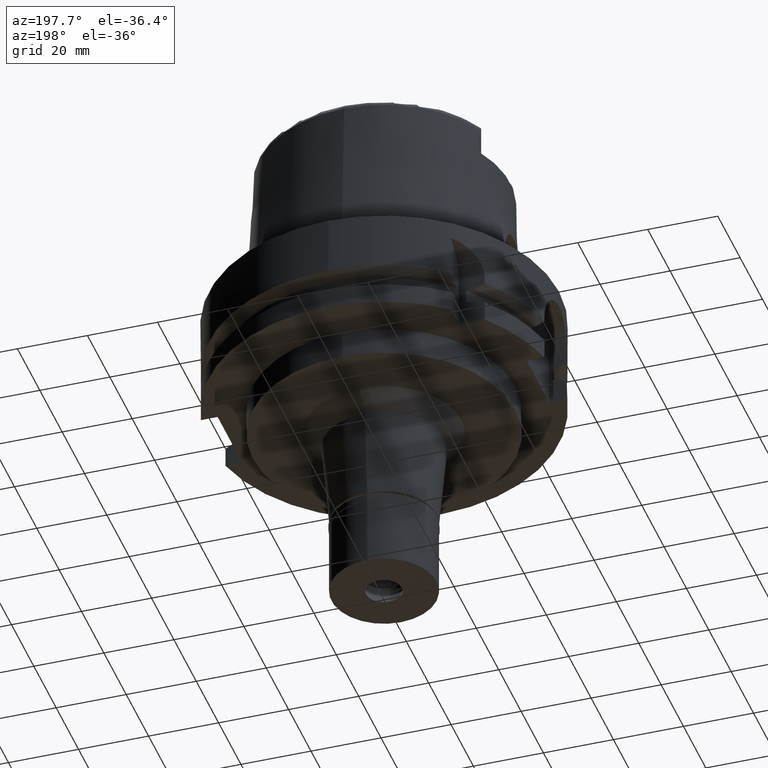
[diagram: clean part render]
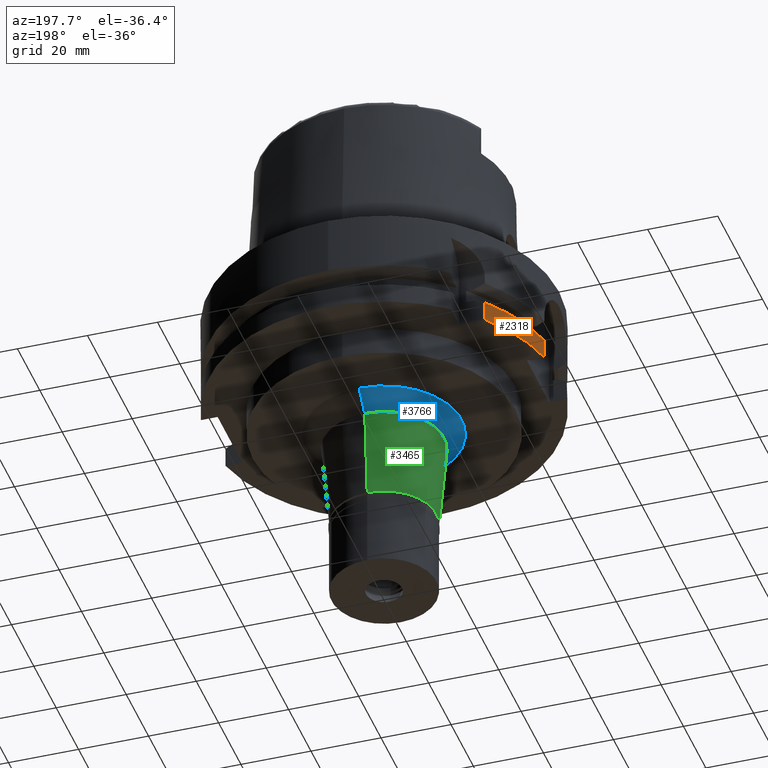
[diagram: same view with three faces highlighted in distinct colors, each labeled with its STEP entity id]
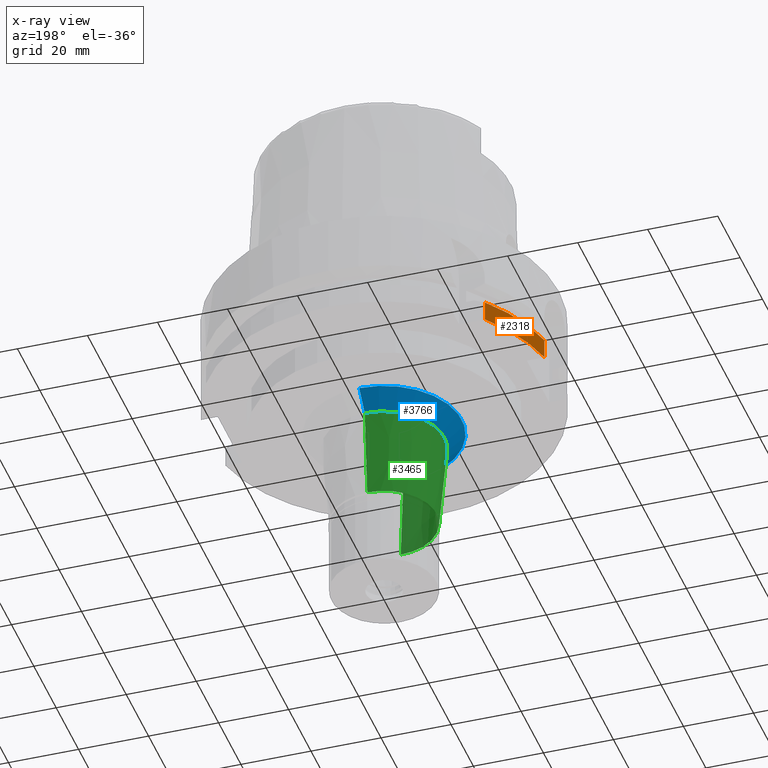
[diagram: x-ray of the same camera — body ghosted, the three highlighted faces saturated]
A machine part, auxiliary view with three faces highlighted in distinct colors.
The next image is the same camera in x-ray (body ghosted, the three faces saturated) — at least one of them is partly hidden behind the body in this view.
Their STEP definitions:

[orange] entity #2318 — the highlighted cylindrical surface (partial cylindrical patch) has radius 50 mm, axis along (0, 0, 1).
#2 = LINE ( 'NONE', #413, #2345 ) ;
#97 = EDGE_CURVE ( 'NONE', #5439, #4053, #2758, .T. ) ;
#413 = CARTESIAN_POINT ( 'NONE',  ( -48.98979485565999425, 10.00000000000000000, -23.24759526419000011 ) ) ;
#467 = CARTESIAN_POINT ( 'NONE',  ( -38.82975730076999810, 31.49999917402000094, -23.24759226099000031 ) ) ;
#515 = DIRECTION ( 'NONE',  ( 0.0000000000000000000, 0.0000000000000000000, 1.000000000000000000 ) ) ;
#912 = ORIENTED_EDGE ( 'NONE', *, *, #4080, .T. ) ;
#960 = LINE ( 'NONE', #4343, #1227 ) ;
#1182 = DIRECTION ( 'NONE',  ( 0.0000000000000000000, 1.000000000000000000, 0.0000000000000000000 ) ) ;
#1227 = VECTOR ( 'NONE', #3031, 1000.000000000000227 ) ;
#1239 = EDGE_LOOP ( 'NONE', ( #912, #2270, #1857, #5146 ) ) ;
#1663 = DIRECTION ( 'NONE',  ( -8.399427413532000465E-14, 0.0000000000000000000, -1.000000000000000000 ) ) ;
#1771 = AXIS2_PLACEMENT_3D ( 'NONE', #4065, #5119, #5392 ) ;
#1857 = ORIENTED_EDGE ( 'NONE', *, *, #97, .T. ) ;
#2270 = ORIENTED_EDGE ( 'NONE', *, *, #3182, .F. ) ;
#2311 = CIRCLE ( 'NONE', #2674, 50.00000000000000711 ) ;
#2318 = ADVANCED_FACE ( 'NONE', ( #5075 ), #3699, .T. ) ;
#2345 = VECTOR ( 'NONE', #1663, 1000.000000000000000 ) ;
#2615 = AXIS2_PLACEMENT_3D ( 'NONE', #5103, #3788, #1182 ) ;
#2659 = CARTESIAN_POINT ( 'NONE',  ( 0.0000000000000000000, 0.0000000000000000000, -29.00000000000000000 ) ) ;
#2674 = AXIS2_PLACEMENT_3D ( 'NONE', #2659, #515, #3908 ) ;
#2758 = CIRCLE ( 'NONE', #1771, 49.99999999999997868 ) ;
#3022 = VERTEX_POINT ( 'NONE', #5478 ) ;
#3031 = DIRECTION ( 'NONE',  ( -1.164835666499979694E-07, -1.435883620958975412E-07, 0.9999999999999827915 ) ) ;
#3182 = EDGE_CURVE ( 'NONE', #5439, #3022, #2, .T. ) ;
#3699 = CYLINDRICAL_SURFACE ( 'NONE', #2615, 50.00000000000000000 ) ;
#3788 = DIRECTION ( 'NONE',  ( 0.0000000000000000000, 0.0000000000000000000, 1.000000000000000000 ) ) ;
#3908 = DIRECTION ( 'NONE',  ( -0.7765951326141738997, 0.6299999999999789102, 0.0000000000000000000 ) ) ;
#3955 = VERTEX_POINT ( 'NONE', #4307 ) ;
#4008 = EDGE_CURVE ( 'NONE', #3955, #4053, #960, .T. ) ;
#4053 = VERTEX_POINT ( 'NONE', #467 ) ;
#4065 = CARTESIAN_POINT ( 'NONE',  ( 0.0000000000000000000, 0.0000000000000000000, -23.24759526419000011 ) ) ;
#4080 = EDGE_CURVE ( 'NONE', #3955, #3022, #2311, .T. ) ;
#4307 = CARTESIAN_POINT ( 'NONE',  ( -38.82975663071000128, 31.50000000000000000, -29.00000000000000000 ) ) ;
#4343 = CARTESIAN_POINT ( 'NONE',  ( -38.82975663071000128, 31.50000000000000000, -29.00000000000000000 ) ) ;
#4438 = CARTESIAN_POINT ( 'NONE',  ( -48.98979485565999425, 10.00000000000000000, -23.24759526419000011 ) ) ;
#5075 = FACE_OUTER_BOUND ( 'NONE', #1239, .T. ) ;
#5103 = CARTESIAN_POINT ( 'NONE',  ( 0.0000000000000000000, 0.0000000000000000000, -89.96500000000000341 ) ) ;
#5119 = DIRECTION ( 'NONE',  ( 0.0000000000000000000, 0.0000000000000000000, -1.000000000000000000 ) ) ;
#5146 = ORIENTED_EDGE ( 'NONE', *, *, #4008, .F. ) ;
#5392 = DIRECTION ( 'NONE',  ( -0.9797958971132723072, 0.1999999999999946265, 0.0000000000000000000 ) ) ;
#5439 = VERTEX_POINT ( 'NONE', #4438 ) ;
#5478 = CARTESIAN_POINT ( 'NONE',  ( -48.98979485565999425, 10.00000000000000000, -29.00000000000000000 ) ) ;

[blue] entity #3766 — the highlighted conical surface has half-angle 45 deg.
#253 = AXIS2_PLACEMENT_3D ( 'NONE', #3784, #2029, #2965 ) ;
#350 = ORIENTED_EDGE ( 'NONE', *, *, #1280, .T. ) ;
#531 = CIRCLE ( 'NONE', #253, 22.20471432084999819 ) ;
#535 = VECTOR ( 'NONE', #1677, 1000.000000000000000 ) ;
#756 = DIRECTION ( 'NONE',  ( 0.0000000000000000000, -0.7071067811862969954, -0.7071067811867980391 ) ) ;
#899 = CARTESIAN_POINT ( 'NONE',  ( 0.0000000000000000000, -17.20471432085000174, -42.00000000000000000 ) ) ;
#932 = DIRECTION ( 'NONE',  ( 0.0000000000000000000, 0.0000000000000000000, -1.000000000000000000 ) ) ;
#946 = VERTEX_POINT ( 'NONE', #899 ) ;
#991 = CARTESIAN_POINT ( 'NONE',  ( 0.0000000000000000000, 0.0000000000000000000, -42.00000000000000000 ) ) ;
#1280 = EDGE_CURVE ( 'NONE', #3118, #4522, #531, .T. ) ;
#1500 = CIRCLE ( 'NONE', #5308, 17.20471432085000174 ) ;
#1533 = EDGE_LOOP ( 'NONE', ( #3257, #2532, #350, #3949 ) ) ;
#1554 = CARTESIAN_POINT ( 'NONE',  ( 0.0000000000000000000, 22.20471432084999819, -37.00000000000000000 ) ) ;
#1583 = VERTEX_POINT ( 'NONE', #3801 ) ;
#1677 = DIRECTION ( 'NONE',  ( 0.0000000000000000000, 0.7071067811862969954, -0.7071067811867980391 ) ) ;
#1764 = EDGE_CURVE ( 'NONE', #3118, #946, #3760, .T. ) ;
#1772 = AXIS2_PLACEMENT_3D ( 'NONE', #2133, #3852, #2021 ) ;
#1985 = LINE ( 'NONE', #1554, #3337 ) ;
#2021 = DIRECTION ( 'NONE',  ( 0.0000000000000000000, 1.000000000000000000, 0.0000000000000000000 ) ) ;
#2029 = DIRECTION ( 'NONE',  ( 0.0000000000000000000, 0.0000000000000000000, -1.000000000000000000 ) ) ;
#2133 = CARTESIAN_POINT ( 'NONE',  ( 0.0000000000000000000, 0.0000000000000000000, -39.50000000000000000 ) ) ;
#2192 = DIRECTION ( 'NONE',  ( 0.0000000000000000000, -1.000000000000000000, 0.0000000000000000000 ) ) ;
#2289 = EDGE_CURVE ( 'NONE', #4522, #1583, #1985, .T. ) ;
#2532 = ORIENTED_EDGE ( 'NONE', *, *, #1764, .F. ) ;
#2727 = CARTESIAN_POINT ( 'NONE',  ( 0.0000000000000000000, 22.20471432084999819, -37.00000000000000000 ) ) ;
#2965 = DIRECTION ( 'NONE',  ( 0.0000000000000000000, -1.000000000000000000, 0.0000000000000000000 ) ) ;
#2995 = CARTESIAN_POINT ( 'NONE',  ( 0.0000000000000000000, -22.20471432084999819, -37.00000000000000000 ) ) ;
#3118 = VERTEX_POINT ( 'NONE', #2995 ) ;
#3257 = ORIENTED_EDGE ( 'NONE', *, *, #4079, .F. ) ;
#3337 = VECTOR ( 'NONE', #756, 1000.000000000000000 ) ;
#3760 = LINE ( 'NONE', #5019, #535 ) ;
#3766 = ADVANCED_FACE ( 'NONE', ( #5615 ), #4761, .T. ) ;
#3784 = CARTESIAN_POINT ( 'NONE',  ( 0.0000000000000000000, 0.0000000000000000000, -37.00000000000000000 ) ) ;
#3801 = CARTESIAN_POINT ( 'NONE',  ( 0.0000000000000000000, 17.20471432085000174, -42.00000000000000000 ) ) ;
#3852 = DIRECTION ( 'NONE',  ( 0.0000000000000000000, 0.0000000000000000000, 1.000000000000000000 ) ) ;
#3949 = ORIENTED_EDGE ( 'NONE', *, *, #2289, .T. ) ;
#4079 = EDGE_CURVE ( 'NONE', #946, #1583, #1500, .T. ) ;
#4522 = VERTEX_POINT ( 'NONE', #2727 ) ;
#4761 = CONICAL_SURFACE ( 'NONE', #1772, 19.70471432085000174, 0.7853981633972997312 ) ;
#5019 = CARTESIAN_POINT ( 'NONE',  ( 0.0000000000000000000, -22.20471432084999819, -37.00000000000000000 ) ) ;
#5308 = AXIS2_PLACEMENT_3D ( 'NONE', #991, #932, #2192 ) ;
#5615 = FACE_OUTER_BOUND ( 'NONE', #1533, .T. ) ;

[green] entity #3465 — the highlighted conical surface has half-angle 5 deg.
#26 = DIRECTION ( 'NONE',  ( 0.0000000000000000000, 0.0000000000000000000, 1.000000000000000000 ) ) ;
#119 = ORIENTED_EDGE ( 'NONE', *, *, #4333, .T. ) ;
#127 = VECTOR ( 'NONE', #3152, 1000.000000000000000 ) ;
#353 = EDGE_CURVE ( 'NONE', #3463, #4562, #4592, .T. ) ;
#576 = FACE_OUTER_BOUND ( 'NONE', #1278, .T. ) ;
#899 = CARTESIAN_POINT ( 'NONE',  ( 0.0000000000000000000, -17.20471432085000174, -42.00000000000000000 ) ) ;
#932 = DIRECTION ( 'NONE',  ( 0.0000000000000000000, 0.0000000000000000000, -1.000000000000000000 ) ) ;
#946 = VERTEX_POINT ( 'NONE', #899 ) ;
#991 = CARTESIAN_POINT ( 'NONE',  ( 0.0000000000000000000, 0.0000000000000000000, -42.00000000000000000 ) ) ;
#1144 = AXIS2_PLACEMENT_3D ( 'NONE', #1794, #2639, #2588 ) ;
#1278 = EDGE_LOOP ( 'NONE', ( #2918, #2348, #4469, #119 ) ) ;
#1381 = CARTESIAN_POINT ( 'NONE',  ( 0.0000000000000000000, 17.20471432085000174, -42.00000000000000000 ) ) ;
#1500 = CIRCLE ( 'NONE', #5308, 17.20471432085000174 ) ;
#1583 = VERTEX_POINT ( 'NONE', #3801 ) ;
#1597 = VECTOR ( 'NONE', #3901, 1000.000000000000000 ) ;
#1794 = CARTESIAN_POINT ( 'NONE',  ( 0.0000000000000000000, 0.0000000000000000000, -67.20000000000000284 ) ) ;
#2156 = LINE ( 'NONE', #1381, #1597 ) ;
#2192 = DIRECTION ( 'NONE',  ( 0.0000000000000000000, -1.000000000000000000, 0.0000000000000000000 ) ) ;
#2276 = CARTESIAN_POINT ( 'NONE',  ( 0.0000000000000000000, -17.20471432085000174, -42.00000000000000000 ) ) ;
#2306 = CONICAL_SURFACE ( 'NONE', #4018, 16.10235716042999954, 0.08726646259969973729 ) ;
#2348 = ORIENTED_EDGE ( 'NONE', *, *, #3361, .F. ) ;
#2588 = DIRECTION ( 'NONE',  ( 0.0000000000000000000, 1.000000000000000000, 0.0000000000000000000 ) ) ;
#2639 = DIRECTION ( 'NONE',  ( 0.0000000000000000000, 0.0000000000000000000, 1.000000000000000000 ) ) ;
#2918 = ORIENTED_EDGE ( 'NONE', *, *, #353, .T. ) ;
#3069 = LINE ( 'NONE', #2276, #127 ) ;
#3094 = DIRECTION ( 'NONE',  ( 0.0000000000000000000, 1.000000000000000000, 0.0000000000000000000 ) ) ;
#3152 = DIRECTION ( 'NONE',  ( 0.0000000000000000000, 0.08715574274756596185, -0.9961946980917535388 ) ) ;
#3361 = EDGE_CURVE ( 'NONE', #946, #4562, #3069, .T. ) ;
#3463 = VERTEX_POINT ( 'NONE', #3997 ) ;
#3465 = ADVANCED_FACE ( 'NONE', ( #576 ), #2306, .T. ) ;
#3544 = CARTESIAN_POINT ( 'NONE',  ( 0.0000000000000000000, 0.0000000000000000000, -54.60000000000000142 ) ) ;
#3801 = CARTESIAN_POINT ( 'NONE',  ( 0.0000000000000000000, 17.20471432085000174, -42.00000000000000000 ) ) ;
#3901 = DIRECTION ( 'NONE',  ( 0.0000000000000000000, -0.08715574274756596185, -0.9961946980917535388 ) ) ;
#3997 = CARTESIAN_POINT ( 'NONE',  ( 0.0000000000000000000, 15.00000000000000000, -67.20000000000000284 ) ) ;
#4018 = AXIS2_PLACEMENT_3D ( 'NONE', #3544, #26, #3094 ) ;
#4079 = EDGE_CURVE ( 'NONE', #946, #1583, #1500, .T. ) ;
#4333 = EDGE_CURVE ( 'NONE', #1583, #3463, #2156, .T. ) ;
#4469 = ORIENTED_EDGE ( 'NONE', *, *, #4079, .T. ) ;
#4562 = VERTEX_POINT ( 'NONE', #4604 ) ;
#4592 = CIRCLE ( 'NONE', #1144, 15.00000000000000000 ) ;
#4604 = CARTESIAN_POINT ( 'NONE',  ( 0.0000000000000000000, -15.00000000000000000, -67.20000000000000284 ) ) ;
#5308 = AXIS2_PLACEMENT_3D ( 'NONE', #991, #932, #2192 ) ;